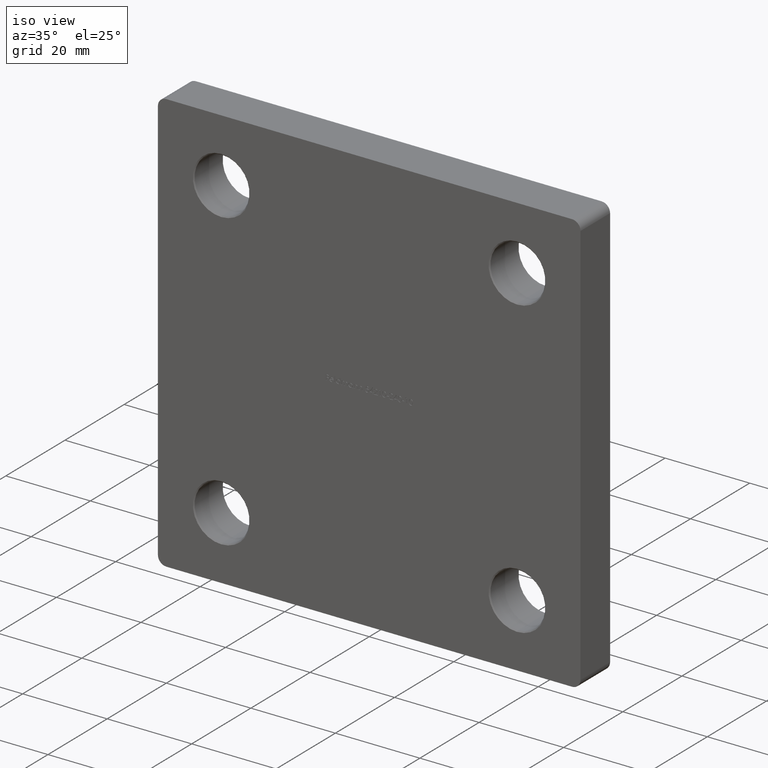
[diagram: clean part render]
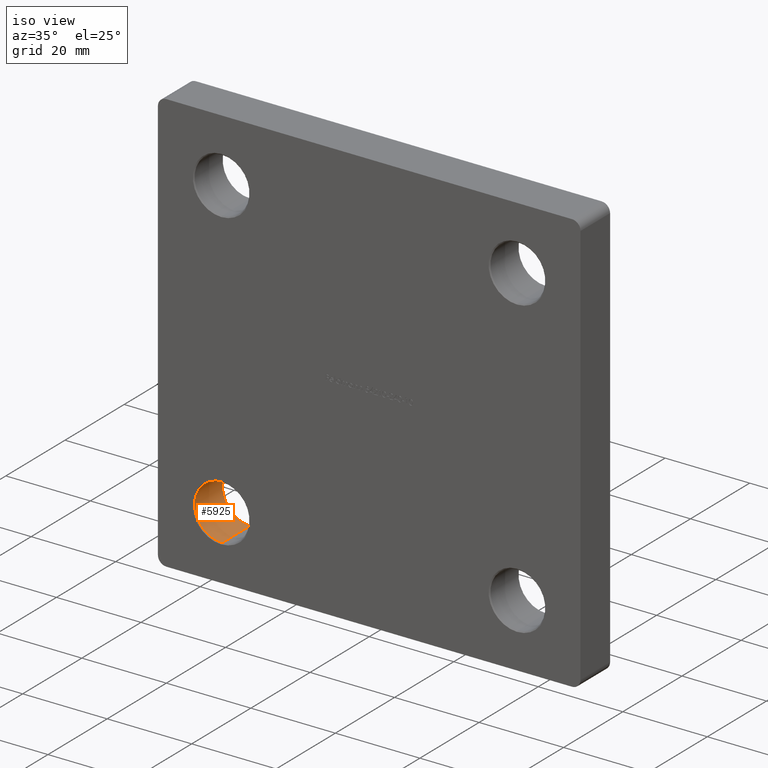
[diagram: same view with one face highlighted and labeled with its STEP entity id]
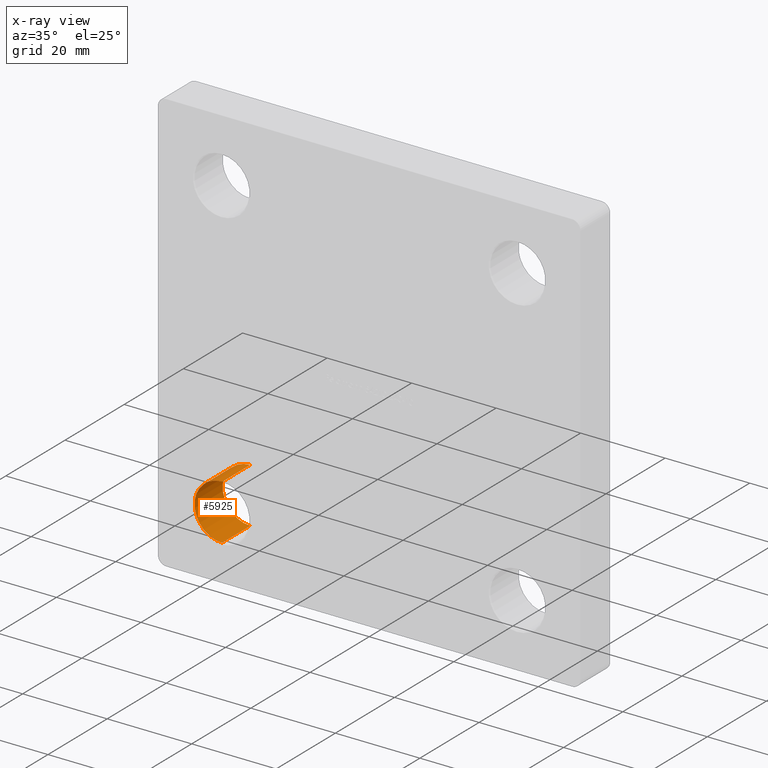
[diagram: x-ray of the same camera — body ghosted, the highlighted face saturated]
A machine part, iso view. The second image highlights one B-rep face of the part: STEP entity #5925.
The next image is the same camera in x-ray: the body ghosted, the highlighted face saturated — about 0% of this face is hidden behind the body in this view.
In plain terms, the highlighted cylindrical surface (edge-blend (fillet) strip) has radius 6.5 mm, axis along (-0, 1, -0).
Its self-contained STEP definition (entity closure, byte-faithful):
#45 = EDGE_CURVE ( 'NONE', #11263, #6234, #2719, .T. ) ;
#60 = CARTESIAN_POINT ( 'NONE',  ( -35.00000000000000000, 0.000000000000000000, -28.50000000000000355 ) ) ;
#206 = CARTESIAN_POINT ( 'NONE',  ( -35.00000000000000000, 9.750000000000010658, -41.50000000000000000 ) ) ;
#751 = CYLINDRICAL_SURFACE ( 'NONE', #13817, 6.499999999999999112 ) ;
#962 = CARTESIAN_POINT ( 'NONE',  ( -35.00000000000000000, 0.2499999999999854838, -35.00000000000000000 ) ) ;
#1367 = ORIENTED_EDGE ( 'NONE', *, *, #45, .F. ) ;
#1590 = EDGE_CURVE ( 'NONE', #11263, #13112, #7811, .T. ) ;
#1613 = CARTESIAN_POINT ( 'NONE',  ( -35.00000000000000000, 0.000000000000000000, -35.00000000000000000 ) ) ;
#2004 = DIRECTION ( 'NONE',  ( -0.000000000000000000, -1.000000000000000000, -0.000000000000000000 ) ) ;
#2719 = LINE ( 'NONE', #60, #6142 ) ;
#2948 = EDGE_CURVE ( 'NONE', #8298, #6234, #13725, .T. ) ;
#3951 = EDGE_LOOP ( 'NONE', ( #5120, #8876, #10959, #1367 ) ) ;
#4113 = VECTOR ( 'NONE', #5619, 1000.000000000000000 ) ;
#4684 = FACE_OUTER_BOUND ( 'NONE', #3951, .T. ) ;
#4826 = LINE ( 'NONE', #6618, #4113 ) ;
#4940 = CARTESIAN_POINT ( 'NONE',  ( -35.00000000000000000, 9.750000000000010658, -35.00000000000000000 ) ) ;
#5120 = ORIENTED_EDGE ( 'NONE', *, *, #1590, .T. ) ;
#5619 = DIRECTION ( 'NONE',  ( -0.000000000000000000, 1.000000000000000000, -0.000000000000000000 ) ) ;
#5925 = ADVANCED_FACE ( 'NONE', ( #4684 ), #751, .F. ) ;
#6142 = VECTOR ( 'NONE', #11996, 1000.000000000000000 ) ;
#6234 = VERTEX_POINT ( 'NONE', #12504 ) ;
#6618 = CARTESIAN_POINT ( 'NONE',  ( -35.00000000000000000, 0.000000000000000000, -41.50000000000000000 ) ) ;
#7040 = DIRECTION ( 'NONE',  ( 0.000000000000000000, 0.000000000000000000, 1.000000000000000000 ) ) ;
#7566 = DIRECTION ( 'NONE',  ( 0.000000000000000000, 0.000000000000000000, 1.000000000000000000 ) ) ;
#7811 = CIRCLE ( 'NONE', #12608, 6.499999999999999112 ) ;
#8079 = DIRECTION ( 'NONE',  ( -0.000000000000000000, 1.000000000000000000, -0.000000000000000000 ) ) ;
#8298 = VERTEX_POINT ( 'NONE', #206 ) ;
#8876 = ORIENTED_EDGE ( 'NONE', *, *, #13135, .T. ) ;
#10959 = ORIENTED_EDGE ( 'NONE', *, *, #2948, .T. ) ;
#11263 = VERTEX_POINT ( 'NONE', #12858 ) ;
#11490 = DIRECTION ( 'NONE',  ( 0.000000000000000000, 0.000000000000000000, 1.000000000000000000 ) ) ;
#11797 = AXIS2_PLACEMENT_3D ( 'NONE', #4940, #13674, #11490 ) ;
#11915 = CARTESIAN_POINT ( 'NONE',  ( -35.00000000000000000, 0.2499999999999854838, -41.50000000000000000 ) ) ;
#11996 = DIRECTION ( 'NONE',  ( -0.000000000000000000, 1.000000000000000000, -0.000000000000000000 ) ) ;
#12504 = CARTESIAN_POINT ( 'NONE',  ( -35.00000000000000000, 9.750000000000010658, -28.50000000000000355 ) ) ;
#12608 = AXIS2_PLACEMENT_3D ( 'NONE', #962, #2004, #7566 ) ;
#12858 = CARTESIAN_POINT ( 'NONE',  ( -35.00000000000000000, 0.2499999999999854838, -28.50000000000000355 ) ) ;
#13112 = VERTEX_POINT ( 'NONE', #11915 ) ;
#13135 = EDGE_CURVE ( 'NONE', #13112, #8298, #4826, .T. ) ;
#13674 = DIRECTION ( 'NONE',  ( 0.000000000000000000, 1.000000000000000000, 0.000000000000000000 ) ) ;
#13725 = CIRCLE ( 'NONE', #11797, 6.499999999999999112 ) ;
#13817 = AXIS2_PLACEMENT_3D ( 'NONE', #1613, #8079, #7040 ) ;